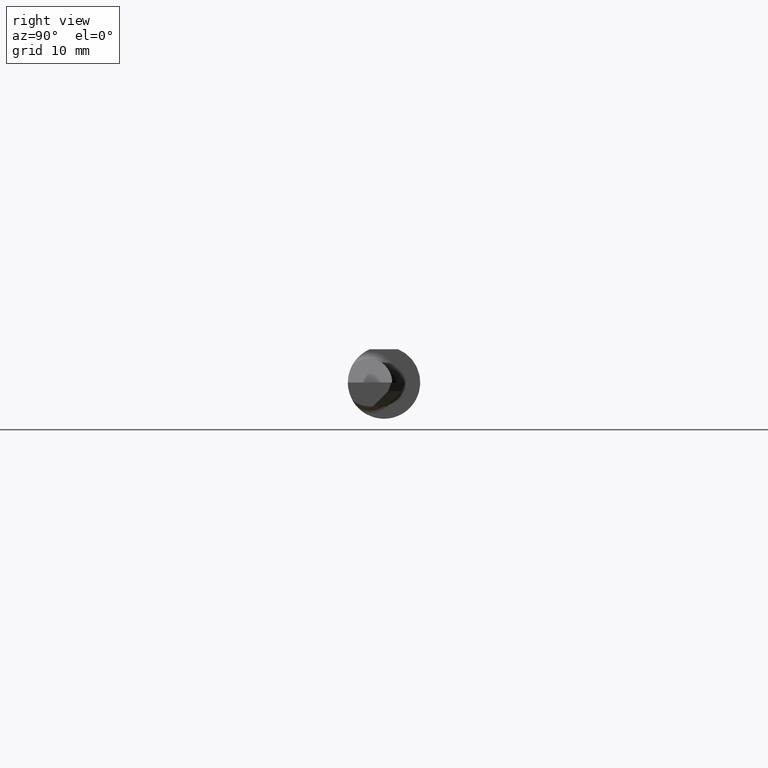
[diagram: clean part render]
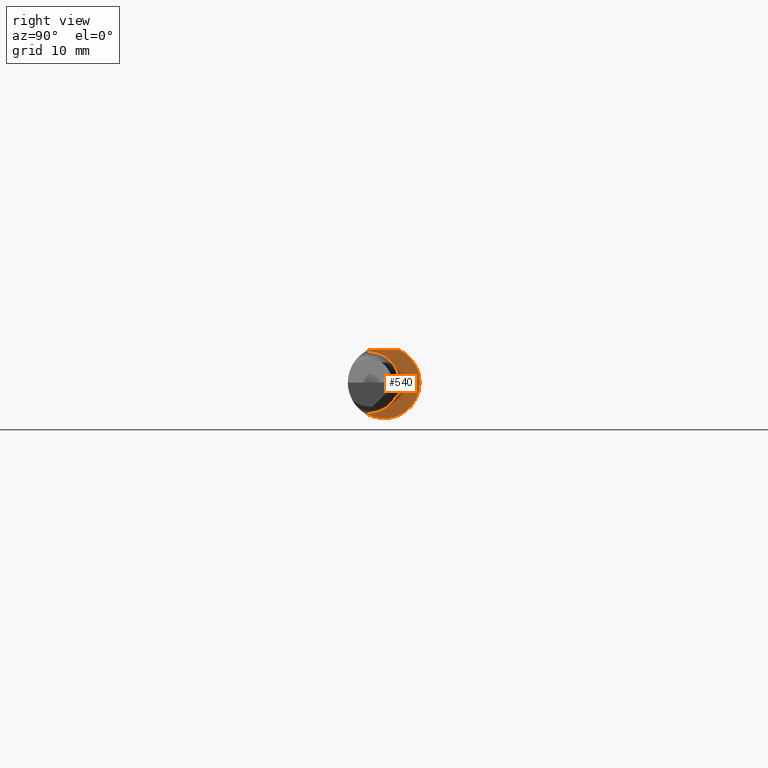
[diagram: same view with one face highlighted and labeled with its STEP entity id]
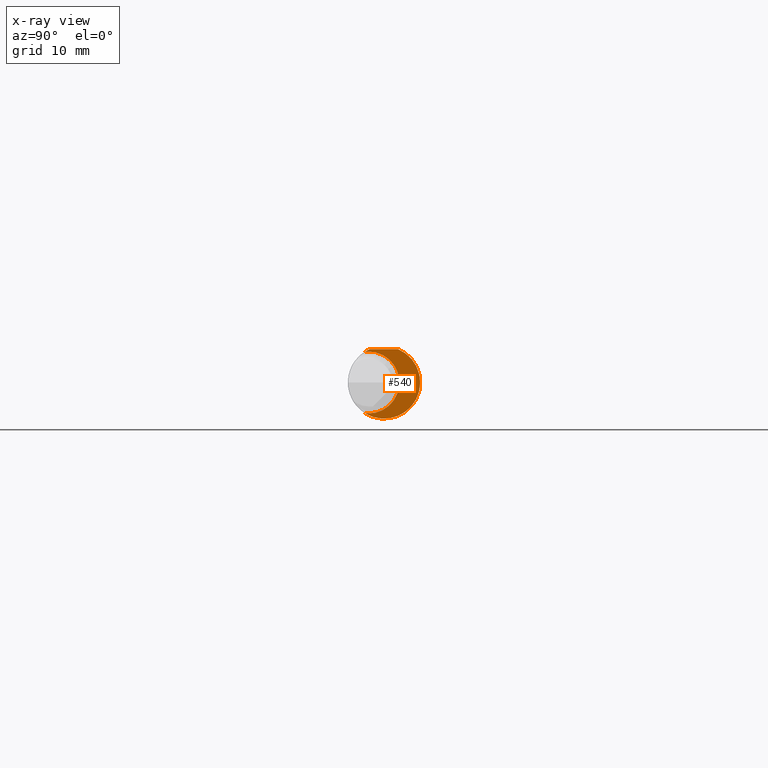
[diagram: x-ray of the same camera — body ghosted, the highlighted face saturated]
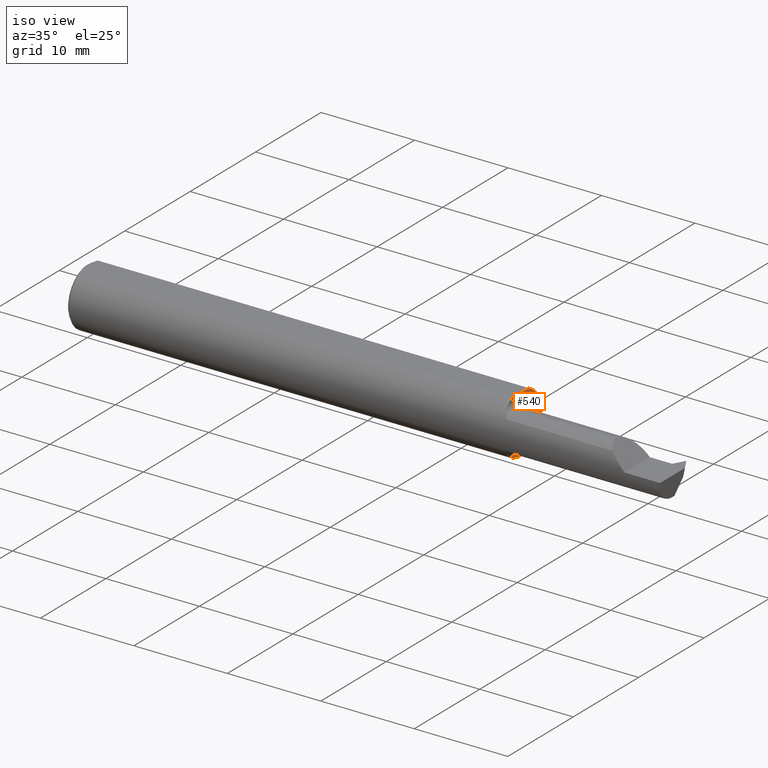
[diagram: same view with one face highlighted and labeled with its STEP entity id]
A machine part, right view. The second image highlights one B-rep face of the part: STEP entity #540.
The next image is the same camera in x-ray: the body ghosted, the highlighted face saturated — about 4% of this face is hidden behind the body in this view.
A second angle (iso view) of the same face is appended — the face is thin or edge-on in the first view.
In plain terms, the highlighted planar face has unit normal (1, 0, 0).
Its self-contained STEP definition (entity closure, byte-faithful):
#1 = DIRECTION ( 'NONE',  ( 1.000000000000000000, 0.000000000000000000, 0.000000000000000000 ) ) ;
#10 = AXIS2_PLACEMENT_3D ( 'NONE', #362, #349, #149 ) ;
#53 = AXIS2_PLACEMENT_3D ( 'NONE', #242, #786, #501 ) ;
#64 = ORIENTED_EDGE ( 'NONE', *, *, #639, .F. ) ;
#97 = CIRCLE ( 'NONE', #53, 0.1069999999999999979 ) ;
#98 = EDGE_CURVE ( 'NONE', #669, #284, #858, .T. ) ;
#101 = CARTESIAN_POINT ( 'NONE',  ( 1.825000000000000400, 0.04895916665957469188, 0.1148499999999999521 ) ) ;
#104 = CARTESIAN_POINT ( 'NONE',  ( 1.825000000000000400, 0.1248500000000000026, 0.1148499999999999521 ) ) ;
#116 = EDGE_CURVE ( 'NONE', #284, #661, #567, .T. ) ;
#120 = ORIENTED_EDGE ( 'NONE', *, *, #712, .T. ) ;
#142 = AXIS2_PLACEMENT_3D ( 'NONE', #625, #847, #636 ) ;
#149 = DIRECTION ( 'NONE',  ( 0.000000000000000000, 0.000000000000000000, 1.000000000000000000 ) ) ;
#158 = EDGE_CURVE ( 'NONE', #202, #669, #521, .T. ) ;
#162 = CARTESIAN_POINT ( 'NONE',  ( 1.825000000000000400, -0.06535139275766017886, -0.1063800637555460532 ) ) ;
#177 = ORIENTED_EDGE ( 'NONE', *, *, #98, .T. ) ;
#200 = CARTESIAN_POINT ( 'NONE',  ( 1.825000000000000400, -0.06535139275766017886, 0.1063800637555460532 ) ) ;
#202 = VERTEX_POINT ( 'NONE', #862 ) ;
#209 = FACE_OUTER_BOUND ( 'NONE', #863, .T. ) ;
#211 = DIRECTION ( 'NONE',  ( -1.000000000000000000, -0.000000000000000000, -0.000000000000000000 ) ) ;
#217 = CIRCLE ( 'NONE', #359, 0.1248500000000000026 ) ;
#242 = CARTESIAN_POINT ( 'NONE',  ( 1.825000000000000400, -0.05385000000000006448, 0.000000000000000000 ) ) ;
#284 = VERTEX_POINT ( 'NONE', #162 ) ;
#340 = ORIENTED_EDGE ( 'NONE', *, *, #158, .T. ) ;
#349 = DIRECTION ( 'NONE',  ( -1.000000000000000000, -0.000000000000000000, -0.000000000000000000 ) ) ;
#358 = CARTESIAN_POINT ( 'NONE',  ( 1.825000000000000400, -0.05385000000000006448, 0.000000000000000000 ) ) ;
#359 = AXIS2_PLACEMENT_3D ( 'NONE', #424, #1, #407 ) ;
#362 = CARTESIAN_POINT ( 'NONE',  ( 1.825000000000000400, -0.05385000000000006448, 0.000000000000000000 ) ) ;
#393 = VERTEX_POINT ( 'NONE', #825 ) ;
#407 = DIRECTION ( 'NONE',  ( 0.000000000000000000, 0.000000000000000000, -1.000000000000000000 ) ) ;
#424 = CARTESIAN_POINT ( 'NONE',  ( 1.825000000000000400, 0.000000000000000000, 0.000000000000000000 ) ) ;
#431 = LINE ( 'NONE', #104, #443 ) ;
#443 = VECTOR ( 'NONE', #508, 39.37007874015748143 ) ;
#479 = DIRECTION ( 'NONE',  ( 0.000000000000000000, 0.000000000000000000, 1.000000000000000000 ) ) ;
#483 = AXIS2_PLACEMENT_3D ( 'NONE', #564, #857, #788 ) ;
#488 = PLANE ( 'NONE',  #142 ) ;
#501 = DIRECTION ( 'NONE',  ( 0.000000000000000000, 0.000000000000000000, 1.000000000000000000 ) ) ;
#502 = EDGE_CURVE ( 'NONE', #393, #893, #217, .T. ) ;
#506 = CARTESIAN_POINT ( 'NONE',  ( 1.825000000000000400, -0.05385000000000004367, -0.1069999999999999979 ) ) ;
#508 = DIRECTION ( 'NONE',  ( 0.000000000000000000, 1.000000000000000000, 0.000000000000000000 ) ) ;
#510 = AXIS2_PLACEMENT_3D ( 'NONE', #358, #211, #479 ) ;
#521 = CIRCLE ( 'NONE', #510, 0.1069999999999999979 ) ;
#540 = ADVANCED_FACE ( 'NONE', ( #209 ), #488, .T. ) ;
#564 = CARTESIAN_POINT ( 'NONE',  ( 1.825000000000000400, 0.000000000000000000, 0.000000000000000000 ) ) ;
#567 = CIRCLE ( 'NONE', #483, 0.1248500000000000026 ) ;
#625 = CARTESIAN_POINT ( 'NONE',  ( 1.825000000000000400, 0.1248499999999999194, 0.000000000000000000 ) ) ;
#636 = DIRECTION ( 'NONE',  ( 0.000000000000000000, 0.000000000000000000, -1.000000000000000000 ) ) ;
#639 = EDGE_CURVE ( 'NONE', #393, #661, #431, .T. ) ;
#650 = ORIENTED_EDGE ( 'NONE', *, *, #502, .T. ) ;
#661 = VERTEX_POINT ( 'NONE', #101 ) ;
#669 = VERTEX_POINT ( 'NONE', #506 ) ;
#712 = EDGE_CURVE ( 'NONE', #893, #202, #97, .T. ) ;
#786 = DIRECTION ( 'NONE',  ( -1.000000000000000000, -0.000000000000000000, -0.000000000000000000 ) ) ;
#788 = DIRECTION ( 'NONE',  ( 0.000000000000000000, 0.000000000000000000, -1.000000000000000000 ) ) ;
#825 = CARTESIAN_POINT ( 'NONE',  ( 1.825000000000000400, -0.04895916665957478209, 0.1148499999999999521 ) ) ;
#837 = ORIENTED_EDGE ( 'NONE', *, *, #116, .T. ) ;
#847 = DIRECTION ( 'NONE',  ( 1.000000000000000000, 0.000000000000000000, 0.000000000000000000 ) ) ;
#857 = DIRECTION ( 'NONE',  ( 1.000000000000000000, 0.000000000000000000, 0.000000000000000000 ) ) ;
#858 = CIRCLE ( 'NONE', #10, 0.1069999999999999979 ) ;
#862 = CARTESIAN_POINT ( 'NONE',  ( 1.825000000000000400, -0.05385000000000006448, 0.1069999999999999979 ) ) ;
#863 = EDGE_LOOP ( 'NONE', ( #837, #64, #650, #120, #340, #177 ) ) ;
#893 = VERTEX_POINT ( 'NONE', #200 ) ;